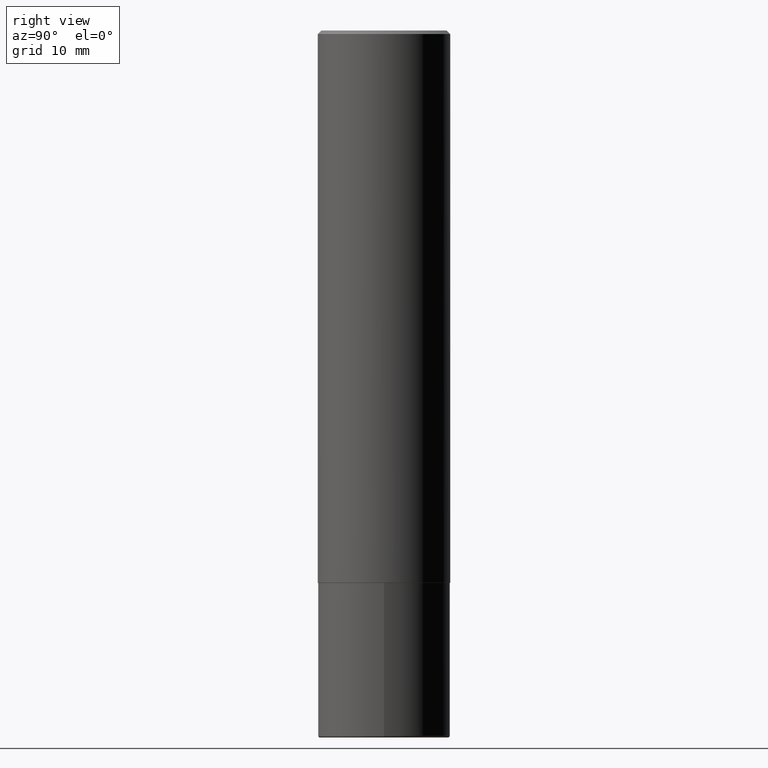
[diagram: clean part render]
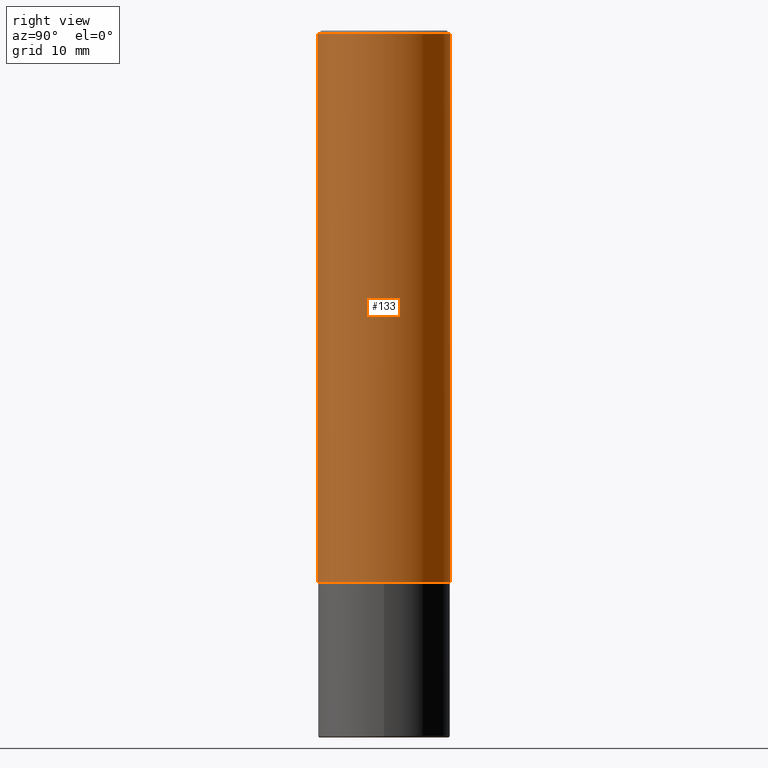
[diagram: same view with one face highlighted and labeled with its STEP entity id]
A machine part, right view. The second image highlights one B-rep face of the part: STEP entity #133.
In plain terms, the highlighted cylindrical surface (partial cylindrical patch) has radius 9.525 mm, axis along (-0, 0, 1).
Its self-contained STEP definition (entity closure, byte-faithful):
#29 = DIRECTION ( 'NONE',  ( -2.445996322747269804E-29, 3.490725905101792415E-15, 1.000000000000000000 ) ) ;
#38 = ORIENTED_EDGE ( 'NONE', *, *, #374, .T. ) ;
#45 = VERTEX_POINT ( 'NONE', #364 ) ;
#51 = FACE_OUTER_BOUND ( 'NONE', #224, .T. ) ;
#72 = VECTOR ( 'NONE', #278, 39.37007874015748143 ) ;
#103 = VERTEX_POINT ( 'NONE', #202 ) ;
#107 = AXIS2_PLACEMENT_3D ( 'NONE', #247, #130, #160 ) ;
#110 = EDGE_CURVE ( 'NONE', #45, #373, #150, .T. ) ;
#116 = VECTOR ( 'NONE', #377, 39.37007874015748143 ) ;
#118 = LINE ( 'NONE', #237, #116 ) ;
#130 = DIRECTION ( 'NONE',  ( -2.445996322747269804E-29, 3.490725905101792415E-15, 1.000000000000000000 ) ) ;
#133 = ADVANCED_FACE ( 'NONE', ( #51 ), #369, .T. ) ;
#143 = CARTESIAN_POINT ( 'NONE',  ( 2.618611004132351200E-15, 0.3750000000000000555, -0.02000000000000139513 ) ) ;
#148 = LINE ( 'NONE', #346, #72 ) ;
#150 = CIRCLE ( 'NONE', #307, 0.3750000000000001110 ) ;
#160 = DIRECTION ( 'NONE',  ( -6.982962677686265922E-15, -1.000000000000000000, 2.913971193241877611E-15 ) ) ;
#162 = VERTEX_POINT ( 'NONE', #360 ) ;
#202 = CARTESIAN_POINT ( 'NONE',  ( -2.618611004132276258E-15, -0.3750000000000113243, -3.123999999999999222 ) ) ;
#203 = CARTESIAN_POINT ( 'NONE',  ( 0.000000000000000000, 0.000000000000000000, 0.000000000000000000 ) ) ;
#224 = EDGE_LOOP ( 'NONE', ( #304, #38, #298, #392 ) ) ;
#237 = CARTESIAN_POINT ( 'NONE',  ( 2.664535259100376880E-15, 0.3750000000000002220, -1.309022214413172994E-15 ) ) ;
#238 = EDGE_CURVE ( 'NONE', #103, #45, #148, .T. ) ;
#247 = CARTESIAN_POINT ( 'NONE',  ( 7.641292512262471991E-29, -1.090502772753799986E-14, -3.124000000000000554 ) ) ;
#278 = DIRECTION ( 'NONE',  ( -2.445996322747270084E-29, 3.490725905101792021E-15, 1.000000000000000000 ) ) ;
#298 = ORIENTED_EDGE ( 'NONE', *, *, #110, .F. ) ;
#299 = DIRECTION ( 'NONE',  ( -2.445996322747269804E-29, 3.490725905101792415E-15, 1.000000000000000000 ) ) ;
#300 = EDGE_CURVE ( 'NONE', #103, #162, #302, .T. ) ;
#301 = DIRECTION ( 'NONE',  ( -6.982962677686265922E-15, -1.000000000000000000, 3.494488891895535640E-15 ) ) ;
#302 = CIRCLE ( 'NONE', #107, 0.3750000000000003886 ) ;
#304 = ORIENTED_EDGE ( 'NONE', *, *, #300, .T. ) ;
#307 = AXIS2_PLACEMENT_3D ( 'NONE', #338, #299, #301 ) ;
#312 = DIRECTION ( 'NONE',  ( -6.982962677686266711E-15, -1.000000000000000000, 3.490725905101792415E-15 ) ) ;
#338 = CARTESIAN_POINT ( 'NONE',  ( 4.891992645494561398E-31, -6.981451810203614264E-17, -0.02000000000000008715 ) ) ;
#346 = CARTESIAN_POINT ( 'NONE',  ( -2.618611004132351594E-15, -0.3750000000000002220, 1.309022214413172994E-15 ) ) ;
#360 = CARTESIAN_POINT ( 'NONE',  ( 2.664535259100415534E-15, 0.3749999999999894529, -3.124000000000001442 ) ) ;
#364 = CARTESIAN_POINT ( 'NONE',  ( -2.572686749164324336E-15, -0.3750000000000001665, -0.01999999999999877570 ) ) ;
#369 = CYLINDRICAL_SURFACE ( 'NONE', #408, 0.3750000000000002220 ) ;
#373 = VERTEX_POINT ( 'NONE', #143 ) ;
#374 = EDGE_CURVE ( 'NONE', #162, #373, #118, .T. ) ;
#377 = DIRECTION ( 'NONE',  ( -2.445996322747270084E-29, 3.490725905101792021E-15, 1.000000000000000000 ) ) ;
#392 = ORIENTED_EDGE ( 'NONE', *, *, #238, .F. ) ;
#408 = AXIS2_PLACEMENT_3D ( 'NONE', #203, #29, #312 ) ;